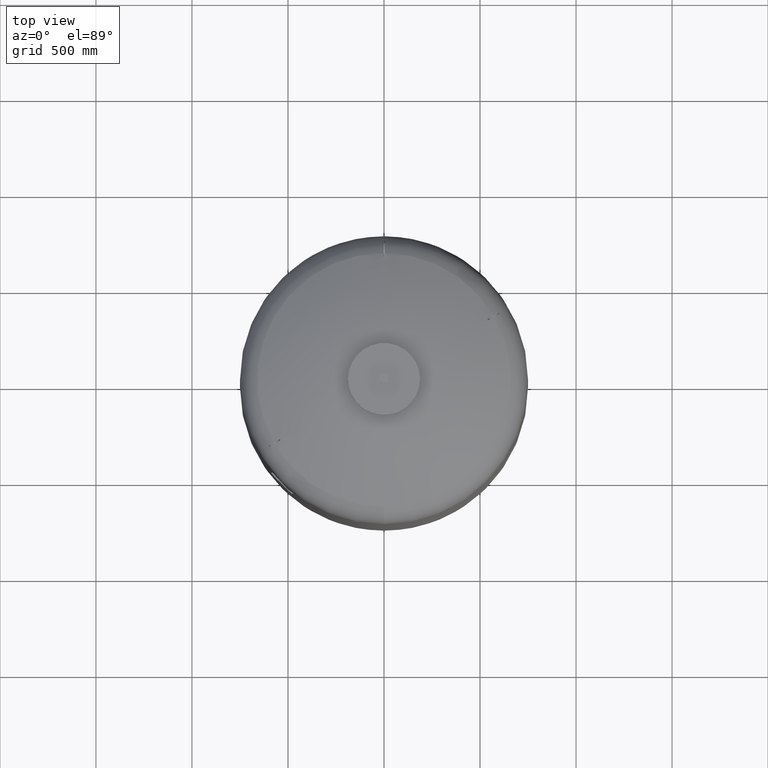
[diagram: clean part render]
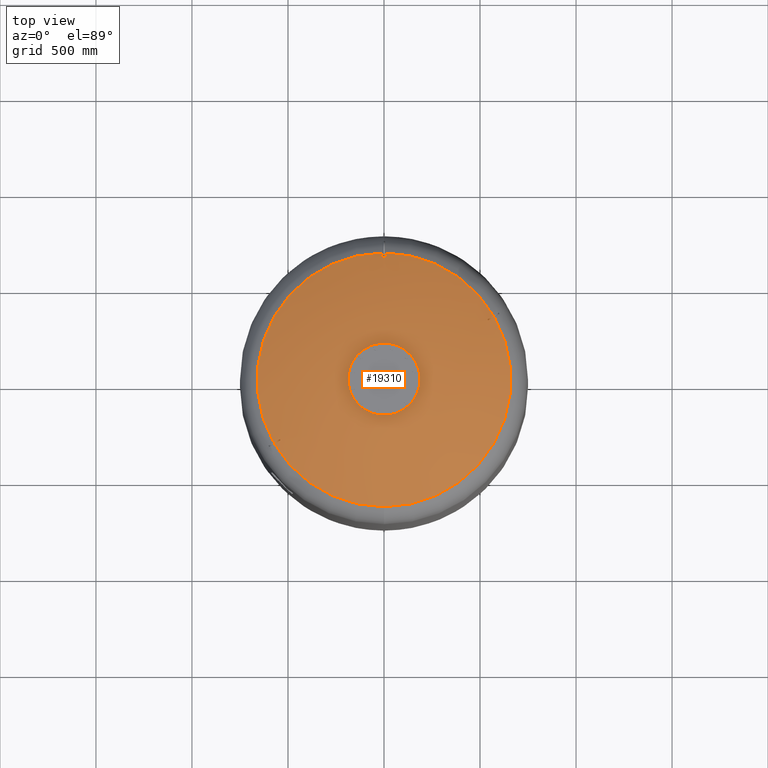
[diagram: same view with one face highlighted and labeled with its STEP entity id]
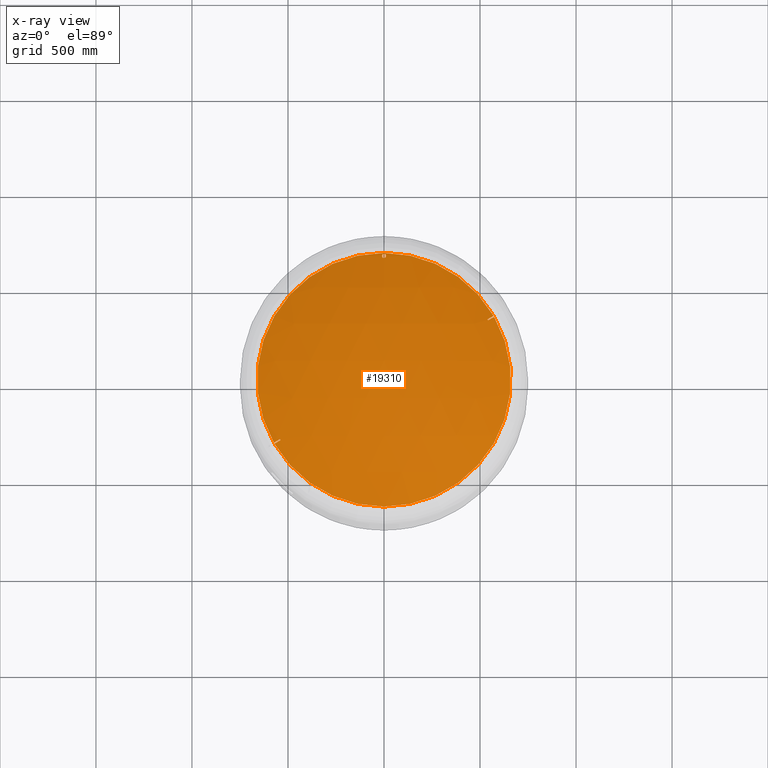
[diagram: x-ray of the same camera — body ghosted, the highlighted face saturated]
A machine part, top view. The second image highlights one B-rep face of the part: STEP entity #19310.
The next image is the same camera in x-ray: the body ghosted, the highlighted face saturated — about 0% of this face is hidden behind the body in this view.
In plain terms, the highlighted spherical surface has radius 1509 mm.
Its self-contained STEP definition (entity closure, byte-faithful):
#18574=CARTESIAN_POINT('',(2.782883E-014,-660.606666666666800,2822.716562866229200));
#18575=VERTEX_POINT('',#18574);
#18591=CARTESIAN_POINT('',(1.087271E-013,660.606666666666800,2822.716562866229200));
#18592=VERTEX_POINT('',#18591);
#18600=CARTESIAN_POINT('',(570.596255916202270,332.898003566943030,2822.716562866229200));
#18601=VERTEX_POINT('',#18600);
#18602=CARTESIAN_POINT('',(7.530601E-015,-2.797401E-014,2822.716562866229200));
#18603=DIRECTION('',(0.0,0.0,-1.0));
#18604=DIRECTION('',(1.0,0.0,0.0));
#18605=AXIS2_PLACEMENT_3D('',#18602,#18603,#18604);
#18606=CIRCLE('',#18605,660.606666666666800);
#18607=EDGE_CURVE('',#18592,#18601,#18606,.T.);
#18636=CARTESIAN_POINT('',(573.596255916202270,327.701851144236400,2822.716562866229200));
#18637=VERTEX_POINT('',#18636);
#18651=CARTESIAN_POINT('',(7.530601E-015,-2.797401E-014,2822.716562866229200));
#18652=DIRECTION('',(0.0,0.0,-1.0));
#18653=DIRECTION('',(1.0,0.0,0.0));
#18654=AXIS2_PLACEMENT_3D('',#18651,#18652,#18653);
#18655=CIRCLE('',#18654,660.606666666666800);
#18656=EDGE_CURVE('',#18637,#18575,#18655,.T.);
#18710=CARTESIAN_POINT('',(-1.897978E-015,655.650000000000090,2825.118860696149600));
#18711=VERTEX_POINT('',#18710);
#18727=CARTESIAN_POINT('',(-1.240563E-015,634.350000000000140,2835.189934778954900));
#18728=VERTEX_POINT('',#18727);
#18735=CARTESIAN_POINT('',(-1.897978E-015,655.650000000000090,2825.118860696149600));
#18736=CARTESIAN_POINT('',(0.665404330812075,655.650000000000090,2825.118860696149600));
#18737=CARTESIAN_POINT('',(1.351005238531910,655.586586472611200,2825.148956099280000));
#18738=CARTESIAN_POINT('',(2.709152380359530,655.322864024945490,2825.274102903181800));
#18739=CARTESIAN_POINT('',(3.381714256279836,655.122620744017920,2825.369122863290600));
#18740=CARTESIAN_POINT('',(4.665906970622906,654.598580857008300,2825.617749092760700));
#18741=CARTESIAN_POINT('',(5.278739801402161,654.274335051525900,2825.771567636845200));
#18742=CARTESIAN_POINT('',(6.407722563082133,653.533432843510700,2826.122965029964700));
#18743=CARTESIAN_POINT('',(6.923874650766102,653.116778685511690,2826.320541682071500));
#18744=CARTESIAN_POINT('',(7.889290439644320,652.188962456306400,2826.760401335867800));
#18745=CARTESIAN_POINT('',(8.360621428439794,651.637013011092450,2827.022009760501500));
#18746=CARTESIAN_POINT('',(9.184218306884119,650.440594312454890,2827.588884786357100));
#18747=CARTESIAN_POINT('',(9.536575262430031,649.796175836176530,2827.894126243167600));
#18748=CARTESIAN_POINT('',(10.099226215268940,648.457629366782610,2828.527921196685800));
#18749=CARTESIAN_POINT('',(10.309904511361037,647.762627273321300,2828.856887882093800));
#18750=CARTESIAN_POINT('',(10.585321999158966,646.370108996278190,2829.515766474685300));
#18751=CARTESIAN_POINT('',(10.650000000000000,645.672582847176160,2829.845682896962900));
#18752=CARTESIAN_POINT('',(10.650000000000000,644.327773783445990,2830.481531696811500));
#18753=CARTESIAN_POINT('',(10.585389715432822,643.630518005042630,2830.811092215923500));
#18754=CARTESIAN_POINT('',(10.310158197774065,642.238371078161090,2831.468852435417800));
#18755=CARTESIAN_POINT('',(10.099596713855746,641.543470358319950,2831.797056877939700));
#18756=CARTESIAN_POINT('',(9.537165322407807,640.205009979753980,2832.429000886638700));
#18757=CARTESIAN_POINT('',(9.184909130526176,639.560574217313730,2832.733154802825100));
#18758=CARTESIAN_POINT('',(8.361484811050532,638.364076526992110,2833.297699280516600));
#18759=CARTESIAN_POINT('',(7.890225855511259,637.812066143510040,2833.558066601965000));
#18760=CARTESIAN_POINT('',(6.924750618118365,636.883947430329950,2833.995733923613400));
#18761=CARTESIAN_POINT('',(6.408446699130911,636.467094997367670,2834.192258225785300));
#18762=CARTESIAN_POINT('',(5.279175018932195,635.725897994843080,2834.541632396409100));
#18763=CARTESIAN_POINT('',(4.666205770247577,635.401555709393960,2834.694482302683800));
#18764=CARTESIAN_POINT('',(3.381800145527401,634.877399673759780,2834.941469592940800));
#18765=CARTESIAN_POINT('',(2.709163715388115,634.677136677483300,2835.035819489551600));
#18766=CARTESIAN_POINT('',(1.350949437001924,634.413404190588380,2835.160067323583900));
#18767=CARTESIAN_POINT('',(0.665356121600540,634.350000000000140,2835.189934778954900));
#18768=CARTESIAN_POINT('',(-1.240563E-015,634.350000000000140,2835.189934778954900));
#18769=B_SPLINE_CURVE_WITH_KNOTS('',3,(#18735,#18736,#18737,#18738,#18739,#18740,#18741,#18742,#18743,#18744,#18745,#18746,#18747,#18748,#18749,#18750,#18751,#18752,#18753,#18754,#18755,#18756,#18757,#18758,#18759,#18760,#18761,#18762,#18763,#18764,#18765,#18766,#18767,#18768),.UNSPECIFIED.,.F.,.U.,(4,2,2,2,2,2,2,2,2,2,2,2,2,2,2,2,4),(0.0,1.996212992436229,3.992425984872458,5.988638977308687,7.984851969744916,10.216773795484329,12.448695621223742,14.680617446963154,16.912539272702567,19.143277643240921,21.374016013779276,23.604754384317630,25.835492754855984,27.831561119657607,29.827629484459230,31.823697849260853,33.819766214062476),.UNSPECIFIED.);
#18770=EDGE_CURVE('',#18711,#18728,#18769,.T.);
#18781=CARTESIAN_POINT('',(-1.240563E-015,634.350000000000140,2835.189934778954900));
#18782=CARTESIAN_POINT('',(-0.665356121600537,634.350000000000140,2835.189934778954900));
#18783=CARTESIAN_POINT('',(-1.350949437001913,634.413404190588380,2835.160067323583900));
#18784=CARTESIAN_POINT('',(-2.709163715388091,634.677136677483300,2835.035819489551600));
#18785=CARTESIAN_POINT('',(-3.381800145527372,634.877399673759780,2834.941469592940800));
#18786=CARTESIAN_POINT('',(-4.666205770247546,635.401555709393960,2834.694482302683800));
#18787=CARTESIAN_POINT('',(-5.279175018932203,635.725897994843080,2834.541632396409100));
#18788=CARTESIAN_POINT('',(-6.408446699130908,636.467094997367670,2834.192258225785700));
#18789=CARTESIAN_POINT('',(-6.924750618118371,636.883947430329950,2833.995733923613400));
#18790=CARTESIAN_POINT('',(-7.890225855511268,637.812066143510040,2833.558066601965000));
#18791=CARTESIAN_POINT('',(-8.361484811050458,638.364076526991990,2833.297699280516600));
#18792=CARTESIAN_POINT('',(-9.184909130526131,639.560574217313620,2832.733154802825100));
#18793=CARTESIAN_POINT('',(-9.537165322407807,640.205009979753980,2832.429000886638700));
#18794=CARTESIAN_POINT('',(-10.099596713855753,641.543470358319950,2831.797056877939700));
#18795=CARTESIAN_POINT('',(-10.310158197774072,642.238371078161090,2831.468852435417800));
#18796=CARTESIAN_POINT('',(-10.585389715432829,643.630518005042630,2830.811092215923500));
#18797=CARTESIAN_POINT('',(-10.650000000000004,644.327773783445990,2830.481531696811500));
#18798=CARTESIAN_POINT('',(-10.650000000000004,645.672582847176160,2829.845682896962900));
#18799=CARTESIAN_POINT('',(-10.585321999158971,646.370108996278190,2829.515766474685300));
#18800=CARTESIAN_POINT('',(-10.309904511361040,647.762627273321300,2828.856887882093800));
#18801=CARTESIAN_POINT('',(-10.099226215268944,648.457629366782610,2828.527921196685800));
#18802=CARTESIAN_POINT('',(-9.536575262430034,649.796175836176530,2827.894126243167600));
#18803=CARTESIAN_POINT('',(-9.184218306884123,650.440594312454890,2827.588884786357100));
#18804=CARTESIAN_POINT('',(-8.360621428439798,651.637013011092450,2827.022009760501500));
#18805=CARTESIAN_POINT('',(-7.889290439644324,652.188962456306400,2826.760401335867800));
#18806=CARTESIAN_POINT('',(-6.923874650766106,653.116778685511690,2826.320541682071500));
#18807=CARTESIAN_POINT('',(-6.407722563082133,653.533432843510700,2826.122965029964700));
#18808=CARTESIAN_POINT('',(-5.278739801402160,654.274335051525900,2825.771567636845200));
#18809=CARTESIAN_POINT('',(-4.665906970622908,654.598580857008300,2825.617749092760700));
#18810=CARTESIAN_POINT('',(-3.381714256279838,655.122620744017920,2825.369122863290600));
#18811=CARTESIAN_POINT('',(-2.709152380359532,655.322864024945490,2825.274102903181800));
#18812=CARTESIAN_POINT('',(-1.351005238531913,655.586586472611200,2825.148956099280000));
#18813=CARTESIAN_POINT('',(-0.665404330812078,655.650000000000090,2825.118860696149600));
#18814=CARTESIAN_POINT('',(-1.897978E-015,655.650000000000090,2825.118860696149600));
#18815=B_SPLINE_CURVE_WITH_KNOTS('',3,(#18781,#18782,#18783,#18784,#18785,#18786,#18787,#18788,#18789,#18790,#18791,#18792,#18793,#18794,#18795,#18796,#18797,#18798,#18799,#18800,#18801,#18802,#18803,#18804,#18805,#18806,#18807,#18808,#18809,#18810,#18811,#18812,#18813,#18814),.UNSPECIFIED.,.F.,.U.,(4,2,2,2,2,2,2,2,2,2,2,2,2,2,2,2,4),(33.819766214062476,35.815834578864084,37.811902943665700,39.807971308467316,41.804039673268932,44.034778043807307,46.265516414345683,48.496254784884059,50.726993155422434,52.958914981161847,55.190836806901260,57.422758632640672,59.654680458380085,61.650893450816312,63.647106443252540,65.643319435688767,67.639532428124994),.UNSPECIFIED.);
#18816=EDGE_CURVE('',#18728,#18711,#18815,.T.);
#18844=CARTESIAN_POINT('',(-570.596255916196580,-332.898003566952920,2822.716562866229700));
#18845=VERTEX_POINT('',#18844);
#18861=CARTESIAN_POINT('',(-539.004547741172360,-314.658522347942950,2839.879584180558100));
#18862=VERTEX_POINT('',#18861);
#18863=CARTESIAN_POINT('',(1.500000000005994,-2.598076211363742,1466.0));
#18864=DIRECTION('',(0.499999999999994,-0.866025403784442,0.0));
#18865=DIRECTION('',(0.0,0.0,1.0));
#18866=AXIS2_PLACEMENT_3D('',#18863,#18864,#18865);
#18867=CIRCLE('',#18866,1508.997017889697400);
#18868=EDGE_CURVE('',#18862,#18845,#18867,.T.);
#18911=CARTESIAN_POINT('',(-542.004547741172470,-309.462369925236320,2839.879584180558100));
#18912=VERTEX_POINT('',#18911);
#18913=CARTESIAN_POINT('',(-195.850324208316520,-113.074237402545550,1403.348481320245600));
#18914=DIRECTION('',(0.834590199910602,0.481850876581402,0.266981143436977));
#18915=DIRECTION('',(0.0,0.484652475916135,-0.874706795211036));
#18916=AXIS2_PLACEMENT_3D('',#18913,#18914,#18915);
#18917=CIRCLE('',#18916,1490.641692208577100);
#18918=EDGE_CURVE('',#18912,#18862,#18917,.T.);
#18996=CARTESIAN_POINT('',(-573.596255916196580,-327.701851144246290,2822.716562866229700));
#18997=VERTEX_POINT('',#18996);
#19020=CARTESIAN_POINT('',(-1.499999999993967,2.598076211342912,1466.0));
#19021=DIRECTION('',(-0.499999999999994,0.866025403784442,0.0));
#19022=DIRECTION('',(0.0,0.0,-1.0));
#19023=AXIS2_PLACEMENT_3D('',#19020,#19021,#19022);
#19024=CIRCLE('',#19023,1508.997017889697400);
#19025=EDGE_CURVE('',#18997,#18912,#19024,.T.);
#19052=CARTESIAN_POINT('',(7.530601E-015,-2.797401E-014,2822.716562866229200));
#19053=DIRECTION('',(0.0,0.0,-1.0));
#19054=DIRECTION('',(1.0,0.0,0.0));
#19055=AXIS2_PLACEMENT_3D('',#19052,#19053,#19054);
#19056=CIRCLE('',#19055,660.606666666666800);
#19057=EDGE_CURVE('',#18575,#18845,#19056,.T.);
#19062=CARTESIAN_POINT('',(7.530601E-015,-2.797401E-014,2822.716562866229200));
#19063=DIRECTION('',(0.0,0.0,-1.0));
#19064=DIRECTION('',(1.0,0.0,0.0));
#19065=AXIS2_PLACEMENT_3D('',#19062,#19063,#19064);
#19066=CIRCLE('',#19065,660.606666666666800);
#19067=EDGE_CURVE('',#18997,#18592,#19066,.T.);
#19087=CARTESIAN_POINT('',(539.004547741178380,314.658522347932720,2839.879584180558100));
#19088=VERTEX_POINT('',#19087);
#19089=CARTESIAN_POINT('',(-1.499999999993948,2.598076211342792,1466.0));
#19090=DIRECTION('',(-0.500000000000006,0.866025403784435,0.0));
#19091=DIRECTION('',(0.0,0.0,-1.0));
#19092=AXIS2_PLACEMENT_3D('',#19089,#19090,#19091);
#19093=CIRCLE('',#19092,1508.997017889697400);
#19094=EDGE_CURVE('',#19088,#18601,#19093,.T.);
#19137=CARTESIAN_POINT('',(542.004547741178380,309.462369925225970,2839.879584180558100));
#19138=VERTEX_POINT('',#19137);
#19139=CARTESIAN_POINT('',(195.850324208315390,113.074237402547780,1403.348481320245400));
#19140=DIRECTION('',(-0.834590199910595,-0.481850876581413,0.266981143436977));
#19141=DIRECTION('',(0.0,0.484652475916126,0.874706795211040));
#19142=AXIS2_PLACEMENT_3D('',#19139,#19140,#19141);
#19143=CIRCLE('',#19142,1490.641692208577100);
#19144=EDGE_CURVE('',#19138,#19088,#19143,.T.);
#19275=CARTESIAN_POINT('',(1.500000000006090,-2.598076211363818,1466.0));
#19276=DIRECTION('',(0.500000000000006,-0.866025403784435,0.0));
#19277=DIRECTION('',(0.0,0.0,1.0));
#19278=AXIS2_PLACEMENT_3D('',#19275,#19276,#19277);
#19279=CIRCLE('',#19278,1508.997017889697400);
#19280=EDGE_CURVE('',#18637,#19138,#19279,.T.);
#19289=CARTESIAN_POINT('',(1.607048E-013,-2.771988E-013,1466.0));
#19290=DIRECTION('',(0.0,-1.0,0.0));
#19291=DIRECTION('',(-1.0,0.0,0.0));
#19292=AXIS2_PLACEMENT_3D('',#19289,#19290,#19291);
#19293=SPHERICAL_SURFACE('',#19292,1509.0);
#19294=ORIENTED_EDGE('',*,*,#18770,.T.);
#19295=ORIENTED_EDGE('',*,*,#18816,.T.);
#19296=EDGE_LOOP('',(#19294,#19295));
#19297=FACE_OUTER_BOUND('',#19296,.T.);
#19298=ORIENTED_EDGE('',*,*,#18868,.T.);
#19299=ORIENTED_EDGE('',*,*,#19057,.F.);
#19300=ORIENTED_EDGE('',*,*,#18656,.F.);
#19301=ORIENTED_EDGE('',*,*,#19280,.T.);
#19302=ORIENTED_EDGE('',*,*,#19144,.T.);
#19303=ORIENTED_EDGE('',*,*,#19094,.T.);
#19304=ORIENTED_EDGE('',*,*,#18607,.F.);
#19305=ORIENTED_EDGE('',*,*,#19067,.F.);
#19306=ORIENTED_EDGE('',*,*,#19025,.T.);
#19307=ORIENTED_EDGE('',*,*,#18918,.T.);
#19308=EDGE_LOOP('',(#19298,#19299,#19300,#19301,#19302,#19303,#19304,#19305,#19306,#19307));
#19309=FACE_BOUND('',#19308,.T.);
#19310=ADVANCED_FACE('',(#19297,#19309),#19293,.T.);